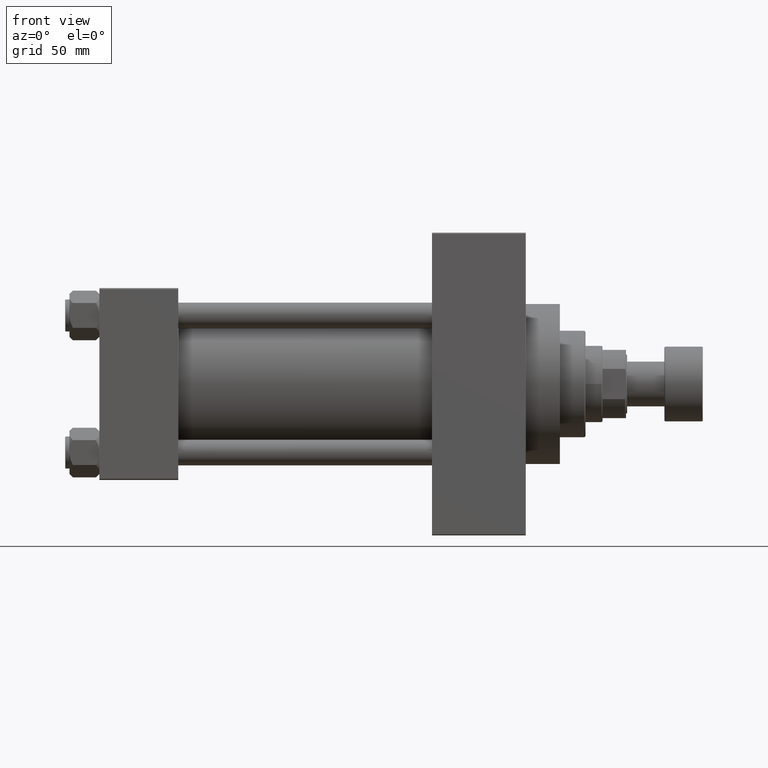
[diagram: clean part render]
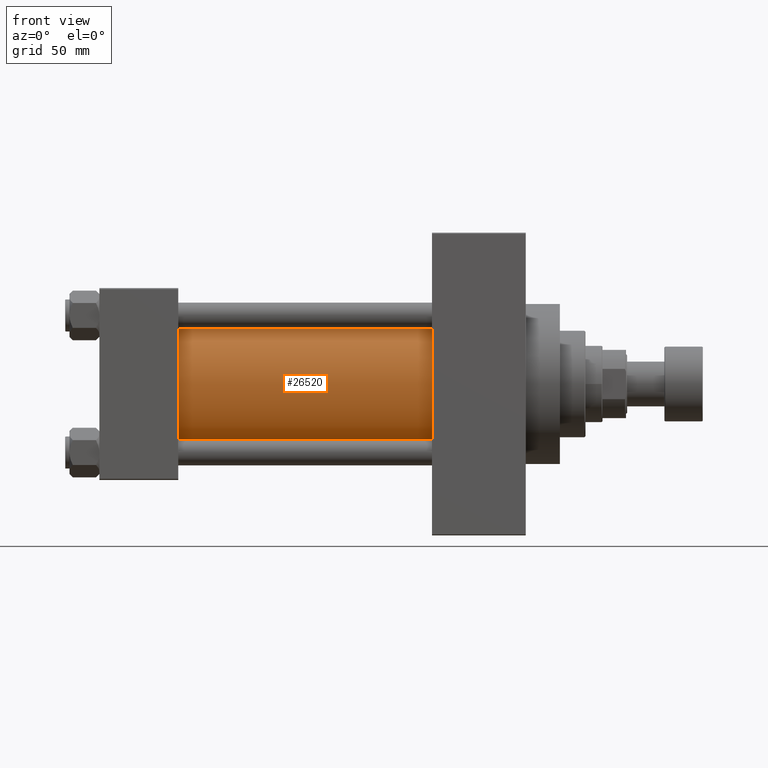
[diagram: same view with one face highlighted and labeled with its STEP entity id]
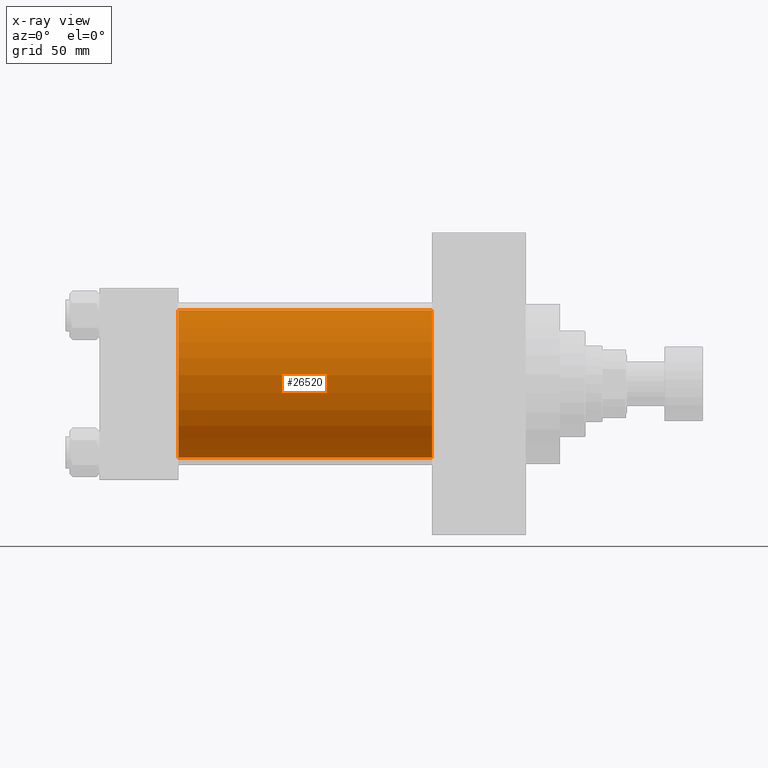
[diagram: x-ray of the same camera — body ghosted, the highlighted face saturated]
A machine part, front view. The second image highlights one B-rep face of the part: STEP entity #26520.
The next image is the same camera in x-ray: the body ghosted, the highlighted face saturated — about 1% of this face is hidden behind the body in this view.
In plain terms, the highlighted cylindrical surface (partial cylindrical patch) has radius 34.5 mm, axis along (-1, -0, -0).
Its self-contained STEP definition (entity closure, byte-faithful):
#218 = ORIENTED_EDGE ( 'NONE', *, *, #39409, .T. ) ;
#2199 = ORIENTED_EDGE ( 'NONE', *, *, #17685, .T. ) ;
#4956 = VECTOR ( 'NONE', #18224, 1000.000000000000000 ) ;
#6439 = DIRECTION ( 'NONE',  ( -1.000000000000000000, -0.000000000000000000, -0.000000000000000000 ) ) ;
#6948 = CARTESIAN_POINT ( 'NONE',  ( 156.0000000000000000, -2.602085213965210642E-15, 34.50000000000000000 ) ) ;
#7585 = CARTESIAN_POINT ( 'NONE',  ( 156.0000000000000000, -2.602085213965210642E-15, 34.50000000000000000 ) ) ;
#8135 = CARTESIAN_POINT ( 'NONE',  ( 37.00000000000000711, 1.622946243093158675E-15, -34.50000000000000000 ) ) ;
#8731 = CARTESIAN_POINT ( 'NONE',  ( 156.0000000000000000, 1.622946243093158675E-15, -34.50000000000000000 ) ) ;
#9817 = CIRCLE ( 'NONE', #22031, 34.50000000000000000 ) ;
#10046 = LINE ( 'NONE', #29315, #4956 ) ;
#12292 = AXIS2_PLACEMENT_3D ( 'NONE', #39017, #6439, #35408 ) ;
#13169 = VERTEX_POINT ( 'NONE', #8135 ) ;
#13412 = VERTEX_POINT ( 'NONE', #8731 ) ;
#16370 = DIRECTION ( 'NONE',  ( 1.000000000000000000, -0.000000000000000000, 0.000000000000000000 ) ) ;
#17685 = EDGE_CURVE ( 'NONE', #33726, #13169, #9817, .T. ) ;
#17794 = ORIENTED_EDGE ( 'NONE', *, *, #40961, .F. ) ;
#18224 = DIRECTION ( 'NONE',  ( -1.000000000000000000, -0.000000000000000000, -0.000000000000000000 ) ) ;
#19991 = CARTESIAN_POINT ( 'NONE',  ( 37.00000000000000711, -2.602085213965210642E-15, 0.000000000000000000 ) ) ;
#21157 = CARTESIAN_POINT ( 'NONE',  ( 156.0000000000000000, -2.602085213965210642E-15, 0.000000000000000000 ) ) ;
#21451 = EDGE_CURVE ( 'NONE', #46958, #13412, #31409, .T. ) ;
#22031 = AXIS2_PLACEMENT_3D ( 'NONE', #19991, #16370, #31085 ) ;
#24905 = EDGE_LOOP ( 'NONE', ( #17794, #28661, #218, #2199 ) ) ;
#26520 = ADVANCED_FACE ( 'NONE', ( #42618 ), #46469, .T. ) ;
#28661 = ORIENTED_EDGE ( 'NONE', *, *, #21451, .F. ) ;
#29315 = CARTESIAN_POINT ( 'NONE',  ( 156.0000000000000000, 1.622946243093158675E-15, -34.50000000000000000 ) ) ;
#31085 = DIRECTION ( 'NONE',  ( 0.000000000000000000, 0.000000000000000000, 1.000000000000000000 ) ) ;
#31409 = CIRCLE ( 'NONE', #44474, 34.50000000000000000 ) ;
#32730 = DIRECTION ( 'NONE',  ( 1.000000000000000000, 0.000000000000000000, 0.000000000000000000 ) ) ;
#32771 = DIRECTION ( 'NONE',  ( -1.000000000000000000, -0.000000000000000000, -0.000000000000000000 ) ) ;
#33511 = VECTOR ( 'NONE', #32771, 1000.000000000000000 ) ;
#33726 = VERTEX_POINT ( 'NONE', #44652 ) ;
#35408 = DIRECTION ( 'NONE',  ( 0.000000000000000000, 0.000000000000000000, 1.000000000000000000 ) ) ;
#39017 = CARTESIAN_POINT ( 'NONE',  ( 156.0000000000000000, -2.602085213965210642E-15, 0.000000000000000000 ) ) ;
#39409 = EDGE_CURVE ( 'NONE', #46958, #33726, #40007, .T. ) ;
#40007 = LINE ( 'NONE', #6948, #33511 ) ;
#40961 = EDGE_CURVE ( 'NONE', #13412, #13169, #10046, .T. ) ;
#42618 = FACE_OUTER_BOUND ( 'NONE', #24905, .T. ) ;
#44474 = AXIS2_PLACEMENT_3D ( 'NONE', #21157, #32730, #47429 ) ;
#44652 = CARTESIAN_POINT ( 'NONE',  ( 37.00000000000000711, -2.602085213965210642E-15, 34.50000000000000000 ) ) ;
#46469 = CYLINDRICAL_SURFACE ( 'NONE', #12292, 34.50000000000000000 ) ;
#46958 = VERTEX_POINT ( 'NONE', #7585 ) ;
#47429 = DIRECTION ( 'NONE',  ( 0.000000000000000000, 0.000000000000000000, -1.000000000000000000 ) ) ;